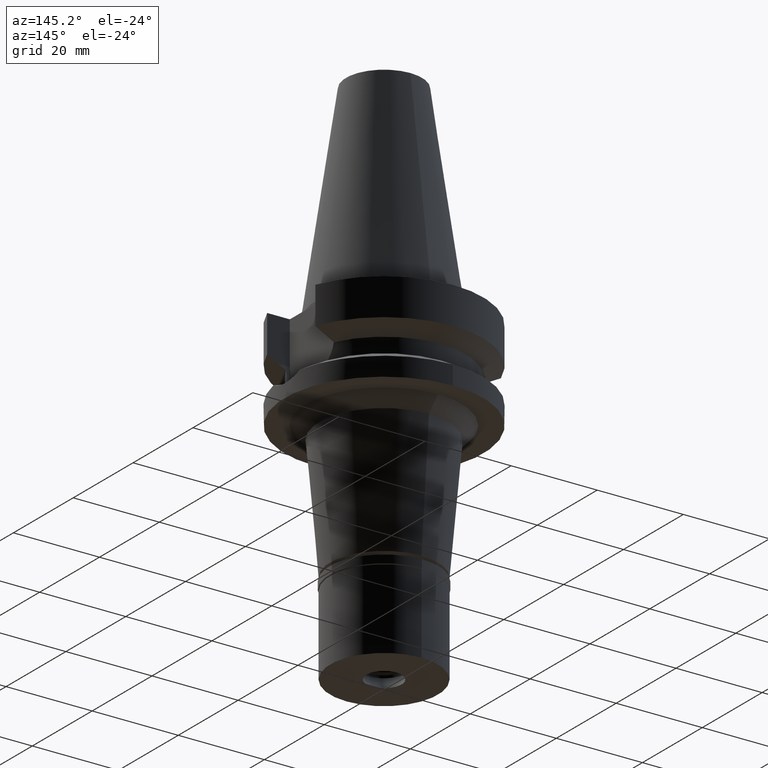
[diagram: clean part render]
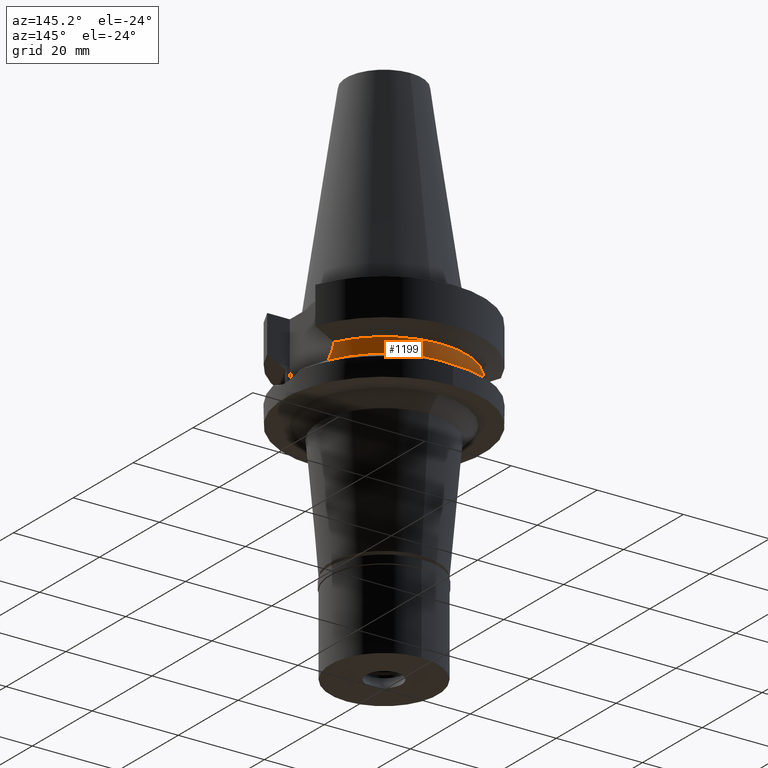
[diagram: same view with one face highlighted and labeled with its STEP entity id]
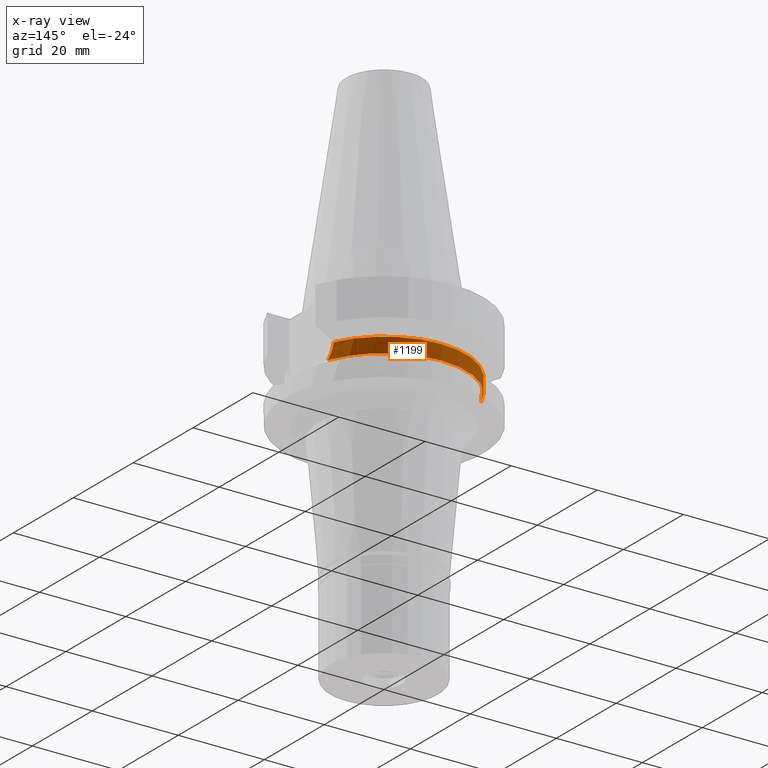
[diagram: x-ray of the same camera — body ghosted, the highlighted face saturated]
A machine part, auxiliary view. The second image highlights one B-rep face of the part: STEP entity #1199.
The next image is the same camera in x-ray: the body ghosted, the highlighted face saturated — about 1% of this face is hidden behind the body in this view.
In plain terms, the highlighted cylindrical surface (partial cylindrical patch) has radius 19 mm, axis along (0, 0, -1).
Its self-contained STEP definition (entity closure, byte-faithful):
#101 = CARTESIAN_POINT ( 'NONE',  ( 17.26628505399758495, 7.929743580512711887, -12.45264544716438415 ) ) ;
#134 = DIRECTION ( 'NONE',  ( 0.0000000000000000000, 1.000000000000000000, 0.0000000000000000000 ) ) ;
#165 = CARTESIAN_POINT ( 'NONE',  ( -17.40050758142243836, 7.630565565649208182, -13.51508960572988016 ) ) ;
#213 = CARTESIAN_POINT ( 'NONE',  ( -17.33753429445269134, 7.772924035862942560, -13.04956638909991185 ) ) ;
#245 = B_SPLINE_CURVE_WITH_KNOTS ( 'NONE', 3,
 ( #2291, #1600, #2583, #2311, #213, #1834, #1117, #165, #2782, #1102, #662, #1855, #2047, #2991, #866 ),
 .UNSPECIFIED., .F., .F.,
 ( 4, 2, 2, 1, 1, 1, 2, 2, 4 ),
 ( 0.0000000000000000000, 0.2500000000000178746, 0.3750000000000268119, 0.4375000000000318634, 0.4687500000000335287, 0.4843750000000343059, 0.4921875000000345834, 0.5000000000000348610, 1.000000000000000000 ),
 .UNSPECIFIED. ) ;
#297 = DIRECTION ( 'NONE',  ( 0.0000000000000000000, -1.000000000000000000, 0.0000000000000000000 ) ) ;
#313 = VERTEX_POINT ( 'NONE', #2502 ) ;
#339 = CARTESIAN_POINT ( 'NONE',  ( 17.51072787940476161, 7.374839633901839164, -14.18046796344787097 ) ) ;
#384 = AXIS2_PLACEMENT_3D ( 'NONE', #2493, #1831, #134 ) ;
#400 = CARTESIAN_POINT ( 'NONE',  ( 0.0000000000000000000, 0.0000000000000000000, -11.87660944646999894 ) ) ;
#513 = CARTESIAN_POINT ( 'NONE',  ( 17.53683850606634209, 7.312769253933304014, -14.31902480997234761 ) ) ;
#542 = CARTESIAN_POINT ( 'NONE',  ( 17.43825996245875132, 7.543902337195889984, -13.75966030956574926 ) ) ;
#544 = EDGE_CURVE ( 'NONE', #1574, #313, #2843, .T. ) ;
#662 = CARTESIAN_POINT ( 'NONE',  ( -17.41740973188570862, 7.591861673427974466, -13.62698225821707432 ) ) ;
#761 = AXIS2_PLACEMENT_3D ( 'NONE', #400, #1124, #1824 ) ;
#866 = CARTESIAN_POINT ( 'NONE',  ( -17.75736593456000278, 6.758398853743999624, -15.32339055352999857 ) ) ;
#1102 = CARTESIAN_POINT ( 'NONE',  ( -17.41455400308278456, 7.598412036671288838, -13.60833259774664405 ) ) ;
#1117 = CARTESIAN_POINT ( 'NONE',  ( -17.38156622591805700, 7.673725377157971650, -13.38458314269293226 ) ) ;
#1124 = DIRECTION ( 'NONE',  ( 0.0000000000000000000, 0.0000000000000000000, -1.000000000000000000 ) ) ;
#1199 = ADVANCED_FACE ( 'NONE', ( #1401 ), #1670, .T. ) ;
#1243 = CARTESIAN_POINT ( 'NONE',  ( 17.32791110705143467, 7.797407455533519993, -13.04850004284895171 ) ) ;
#1247 = CARTESIAN_POINT ( 'NONE',  ( -17.23531135277999837, 7.996501749842999551, -11.87660739337000138 ) ) ;
#1260 = CARTESIAN_POINT ( 'NONE',  ( 0.0000000000000000000, 0.0000000000000000000, 0.0000000000000000000 ) ) ;
#1276 = CARTESIAN_POINT ( 'NONE',  ( 17.23531622902000038, 7.996491146276001771, -11.87660607782000000 ) ) ;
#1297 = CARTESIAN_POINT ( 'NONE',  ( 17.42163631444921990, 7.582155995951247007, -13.65434988420318341 ) ) ;
#1392 = AXIS2_PLACEMENT_3D ( 'NONE', #1260, #2458, #297 ) ;
#1401 = FACE_OUTER_BOUND ( 'NONE', #2477, .T. ) ;
#1496 = CARTESIAN_POINT ( 'NONE',  ( 17.42272085241537027, 7.579664041000751418, -13.66132223650548383 ) ) ;
#1574 = VERTEX_POINT ( 'NONE', #1247 ) ;
#1600 = CARTESIAN_POINT ( 'NONE',  ( -17.25079912548386929, 7.963111191686685686, -12.16468723198503454 ) ) ;
#1670 = CYLINDRICAL_SURFACE ( 'NONE', #1392, 19.00000000000000000 ) ;
#1731 = ORIENTED_EDGE ( 'NONE', *, *, #544, .T. ) ;
#1821 = ORIENTED_EDGE ( 'NONE', *, *, #2274, .T. ) ;
#1824 = DIRECTION ( 'NONE',  ( -0.9071218755693948310, 0.4208680349746975469, 0.0000000000000000000 ) ) ;
#1831 = DIRECTION ( 'NONE',  ( 0.0000000000000000000, 0.0000000000000000000, 1.000000000000000000 ) ) ;
#1834 = CARTESIAN_POINT ( 'NONE',  ( -17.36640948863368195, 7.707982828518821883, -13.27282317184121219 ) ) ;
#1855 = CARTESIAN_POINT ( 'NONE',  ( -17.41902886909224080, 7.588145056434206559, -13.63749496353733370 ) ) ;
#1874 = VERTEX_POINT ( 'NONE', #2621 ) ;
#1966 = CARTESIAN_POINT ( 'NONE',  ( 17.62113139266094564, 7.108367418718804842, -14.74095000843098724 ) ) ;
#1974 = EDGE_CURVE ( 'NONE', #1574, #1874, #245, .T. ) ;
#1996 = CIRCLE ( 'NONE', #384, 19.00000000000000000 ) ;
#2047 = CARTESIAN_POINT ( 'NONE',  ( -17.50086807637586261, 7.400179108321550459, -14.16641331504227708 ) ) ;
#2170 = CARTESIAN_POINT ( 'NONE',  ( 17.45719485019988326, 7.500152504452496594, -13.87559139654183049 ) ) ;
#2209 = VERTEX_POINT ( 'NONE', #2404 ) ;
#2274 = EDGE_CURVE ( 'NONE', #2209, #1874, #1996, .T. ) ;
#2291 = CARTESIAN_POINT ( 'NONE',  ( -17.23531135277999837, 7.996501749842999551, -11.87660739337000138 ) ) ;
#2311 = CARTESIAN_POINT ( 'NONE',  ( -17.32020187218237695, 7.811452264617057217, -12.90108126113137210 ) ) ;
#2321 = EDGE_CURVE ( 'NONE', #2209, #313, #2773, .T. ) ;
#2404 = CARTESIAN_POINT ( 'NONE',  ( 17.75736593456000278, 6.758398853743999624, -15.32339055352999857 ) ) ;
#2454 = CARTESIAN_POINT ( 'NONE',  ( 17.68527465920388053, 6.947815191080798591, -15.03067689316391053 ) ) ;
#2458 = DIRECTION ( 'NONE',  ( 0.0000000000000000000, 0.0000000000000000000, -1.000000000000000000 ) ) ;
#2475 = CARTESIAN_POINT ( 'NONE',  ( 17.42911851113716537, 7.564954524543376913, -13.70217975904482799 ) ) ;
#2477 = EDGE_LOOP ( 'NONE', ( #1731, #2829, #1821, #3017 ) ) ;
#2493 = CARTESIAN_POINT ( 'NONE',  ( 0.0000000000000000000, 0.0000000000000000000, -15.32339055352999857 ) ) ;
#2502 = CARTESIAN_POINT ( 'NONE',  ( 17.23531622902000038, 7.996491146276001771, -11.87660607782000000 ) ) ;
#2583 = CARTESIAN_POINT ( 'NONE',  ( -17.27395772692245046, 7.913379800912671236, -12.45762674632126199 ) ) ;
#2621 = CARTESIAN_POINT ( 'NONE',  ( -17.75736593456000278, 6.758398853743999624, -15.32339055352999857 ) ) ;
#2634 = CARTESIAN_POINT ( 'NONE',  ( 17.47454244271734680, 7.459747681865206204, -13.97656327293264766 ) ) ;
#2667 = CARTESIAN_POINT ( 'NONE',  ( 17.75736593456000278, 6.758398853743999624, -15.32339055352999857 ) ) ;
#2773 = B_SPLINE_CURVE_WITH_KNOTS ( 'NONE', 3,
 ( #2667, #2454, #1966, #513, #339, #2634, #2170, #542, #2475, #2879, #1496, #1297, #1243, #101, #1276 ),
 .UNSPECIFIED., .F., .F.,
 ( 4, 2, 2, 1, 1, 1, 2, 2, 4 ),
 ( 0.0000000000000000000, 0.2500000000000179856, 0.3750000000000265898, 0.4375000000000311418, 0.4687500000000342504, 0.4843750000000355271, 0.4921875000000354716, 0.5000000000000354161, 1.000000000000000000 ),
 .UNSPECIFIED. ) ;
#2782 = CARTESIAN_POINT ( 'NONE',  ( -17.41029288300946476, 7.608179589639397555, -13.58035844439397977 ) ) ;
#2829 = ORIENTED_EDGE ( 'NONE', *, *, #2321, .F. ) ;
#2843 = CIRCLE ( 'NONE', #761, 19.00000000000000000 ) ;
#2879 = CARTESIAN_POINT ( 'NONE',  ( 17.42527060183126508, 7.573803216217060097, -13.67765101994904242 ) ) ;
#2991 = CARTESIAN_POINT ( 'NONE',  ( -17.61322740995597158, 7.137115851942632538, -14.73814199290237958 ) ) ;
#3017 = ORIENTED_EDGE ( 'NONE', *, *, #1974, .F. ) ;